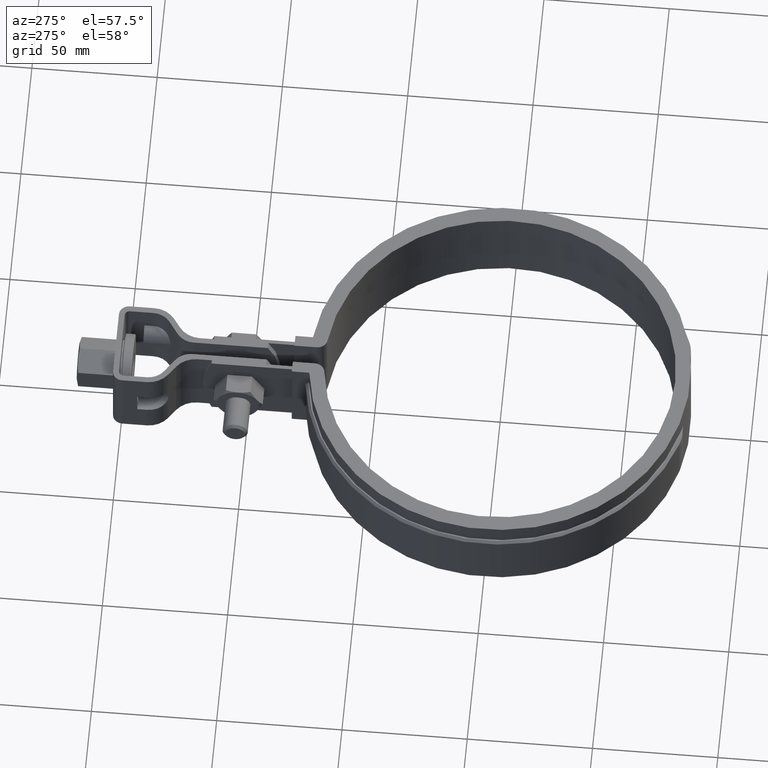
[diagram: clean part render]
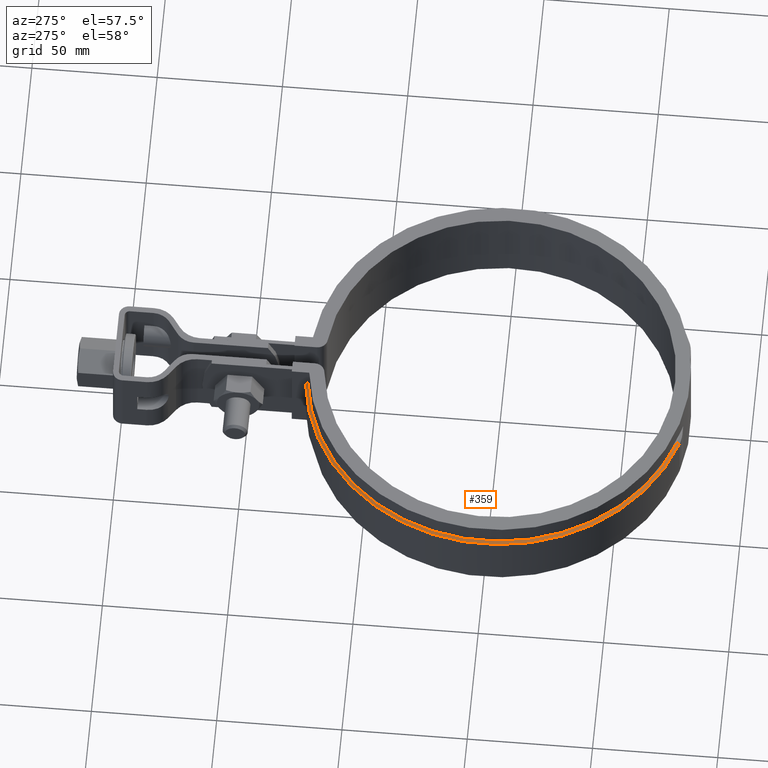
[diagram: same view with one face highlighted and labeled with its STEP entity id]
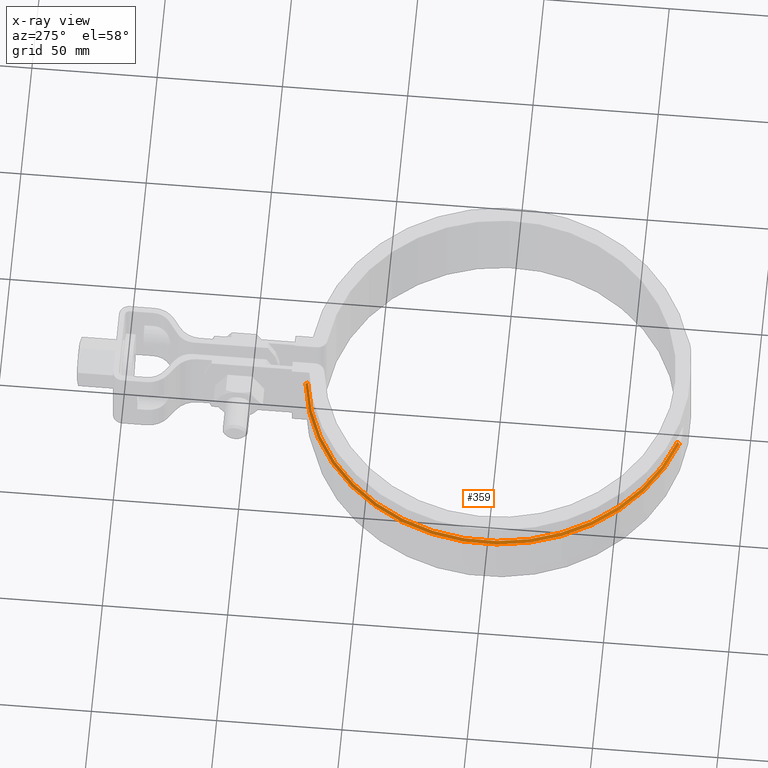
[diagram: x-ray of the same camera — body ghosted, the highlighted face saturated]
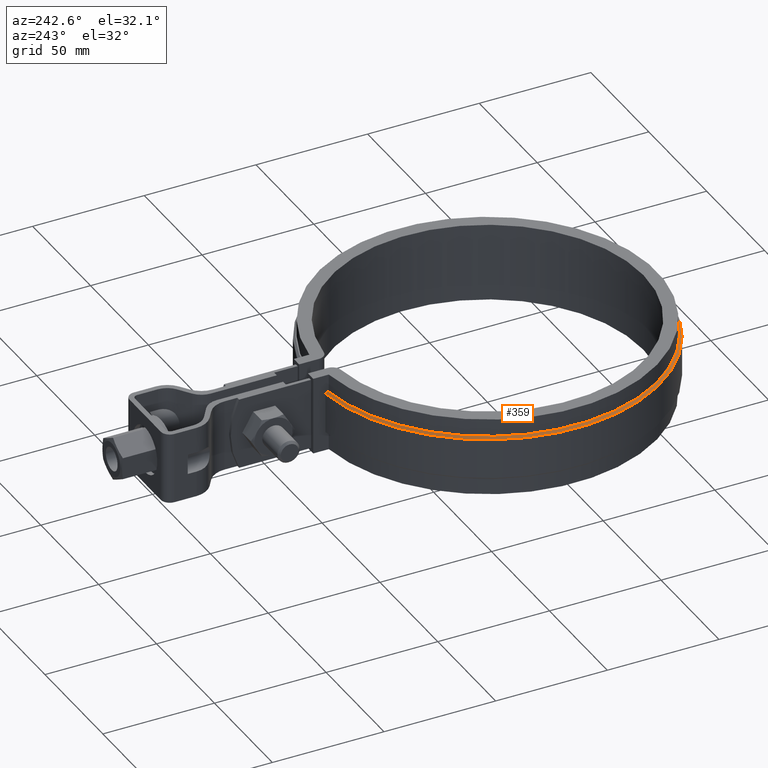
[diagram: same view with one face highlighted and labeled with its STEP entity id]
A machine part, auxiliary view. The second image highlights one B-rep face of the part: STEP entity #359.
The next image is the same camera in x-ray: the body ghosted, the highlighted face saturated — about 0% of this face is hidden behind the body in this view.
A second angle (auxiliary view) of the same face is appended — the face is thin or edge-on in the first view.
In plain terms, the highlighted conical surface has half-angle 45 deg.
Its self-contained STEP definition (entity closure, byte-faithful):
#359 = ADVANCED_FACE( '', ( #586 ), #587, .T. );
#586 = FACE_OUTER_BOUND( '', #1713, .T. );
#587 = CONICAL_SURFACE( '', #1714, 77.4000000000000, 0.785398163397441 );
#1713 = EDGE_LOOP( '', ( #3556, #3557, #3558, #3559 ) );
#1714 = AXIS2_PLACEMENT_3D( '', #3560, #3561, #3562 );
#3556 = ORIENTED_EDGE( '', *, *, #5159, .F. );
#3557 = ORIENTED_EDGE( '', *, *, #5160, .F. );
#3558 = ORIENTED_EDGE( '', *, *, #5161, .F. );
#3559 = ORIENTED_EDGE( '', *, *, #5098, .F. );
#3560 = CARTESIAN_POINT( '', ( -3.46944695195361E-015, -1.38777878078145E-014, -7.00000000000000 ) );
#3561 = DIRECTION( '', ( 0.000000000000000, 0.000000000000000, -1.00000000000000 ) );
#3562 = DIRECTION( '', ( -1.00000000000000, 0.000000000000000, 0.000000000000000 ) );
#5098 = EDGE_CURVE( '', #5685, #5686, #5687, .F. );
#5159 = EDGE_CURVE( '', #5797, #5685, #5798, .T. );
#5160 = EDGE_CURVE( '', #5799, #5797, #5800, .T. );
#5161 = EDGE_CURVE( '', #5686, #5799, #5801, .T. );
#5685 = VERTEX_POINT( '', #7900 );
#5686 = VERTEX_POINT( '', #7901 );
#5687 = CIRCLE( '', #7902, 76.4000000000000 );
#5797 = VERTEX_POINT( '', #8477 );
#5798 = B_SPLINE_CURVE_WITH_KNOTS( '', 3, ( #8478, #8479, #8480, #8481 ), .UNSPECIFIED., .F., .F., ( 4, 4 ), ( 706.997644534970, 706.999063012269 ), .UNSPECIFIED. );
#5799 = VERTEX_POINT( '', #8482 );
#5800 = CIRCLE( '', #8483, 77.4000000000000 );
#5801 = LINE( '', #8484, #8485 );
#7900 = CARTESIAN_POINT( '', ( -8.40000000000000, 75.9368158405394, -5.99999999999999 ) );
#7901 = CARTESIAN_POINT( '', ( -23.4041590270472, -72.7269230769231, -6.00000000000000 ) );
#7902 = AXIS2_PLACEMENT_3D( '', #9509, #9510, #9511 );
#8477 = CARTESIAN_POINT( '', ( -8.40000000000000, 76.9428359238207, -7.00000000000000 ) );
#8478 = CARTESIAN_POINT( '', ( -8.40000000000000, 76.9428359237899, -6.99999999996931 ) );
#8479 = CARTESIAN_POINT( '', ( -8.40000000000000, 76.6075088963139, -6.66665358581030 ) );
#8480 = CARTESIAN_POINT( '', ( -8.40000000000000, 76.2721690397588, -6.33332008024422 ) );
#8481 = CARTESIAN_POINT( '', ( -8.40000000000000, 75.9368158405592, -6.00000000001962 ) );
#8482 = CARTESIAN_POINT( '', ( -23.7104961870871, -73.6788461538461, -6.99999999999997 ) );
#8483 = AXIS2_PLACEMENT_3D( '', #9580, #9581, #9582 );
#8484 = CARTESIAN_POINT( '', ( -23.4041590270472, -72.7269230769231, -6.00000000000000 ) );
#8485 = VECTOR( '', #9583, 1000.00000000000 );
#9509 = CARTESIAN_POINT( '', ( -3.46944695195361E-015, -1.38777878078145E-014, -6.00000000000000 ) );
#9510 = DIRECTION( '', ( 0.000000000000000, 0.000000000000000, -1.00000000000000 ) );
#9511 = DIRECTION( '', ( -1.00000000000000, 0.000000000000000, 0.000000000000000 ) );
#9580 = CARTESIAN_POINT( '', ( -3.46944695195361E-015, -1.38777878078145E-014, -7.00000000000000 ) );
#9581 = DIRECTION( '', ( 0.000000000000000, 0.000000000000000, -1.00000000000000 ) );
#9582 = DIRECTION( '', ( -1.00000000000000, 0.000000000000000, 0.000000000000000 ) );
#9583 = DIRECTION( '', ( -0.216613083193633, -0.673111262860264, -0.707106781186553 ) );